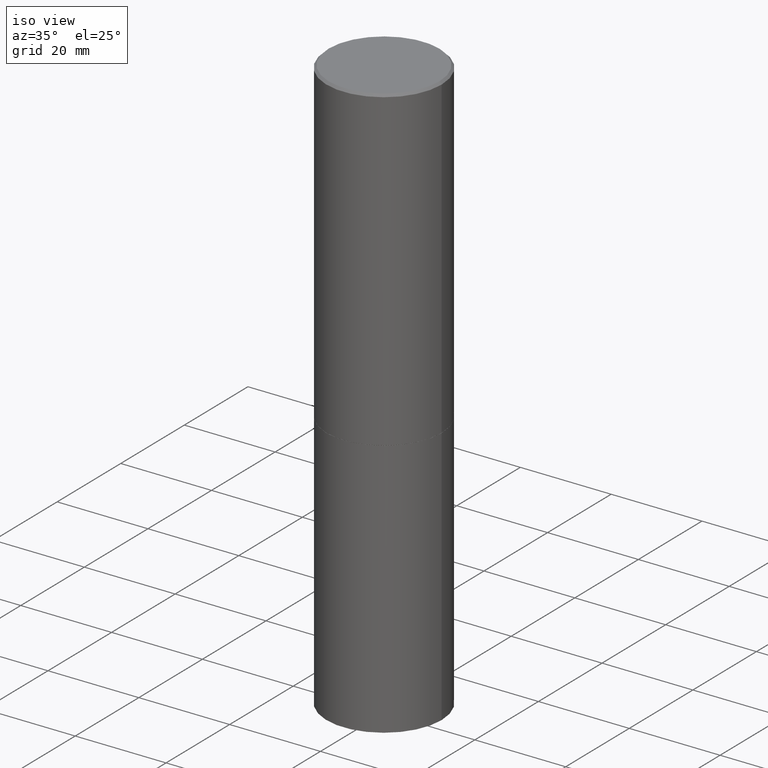
[diagram: clean part render]
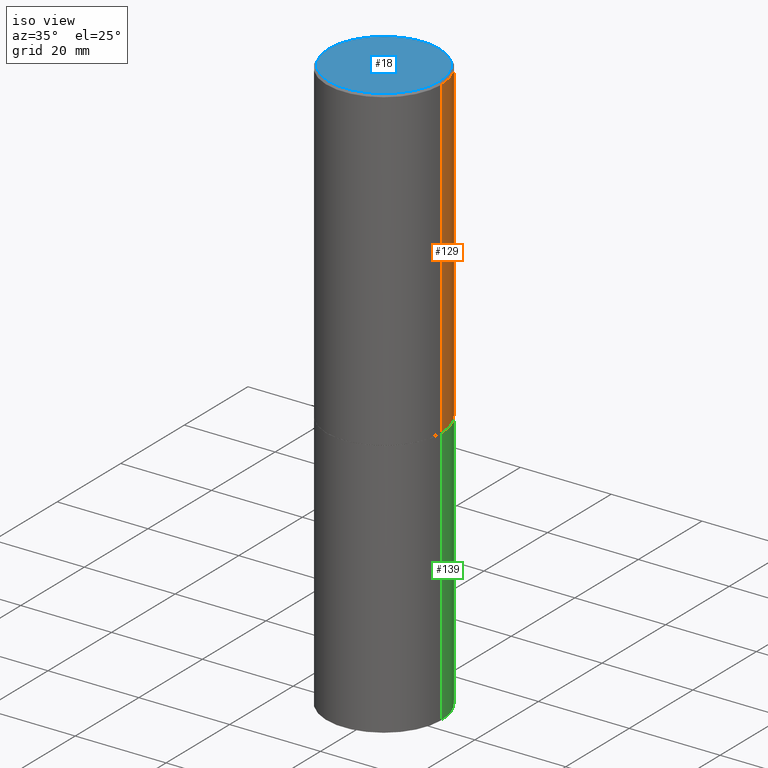
[diagram: same view with three faces highlighted in distinct colors, each labeled with its STEP entity id]
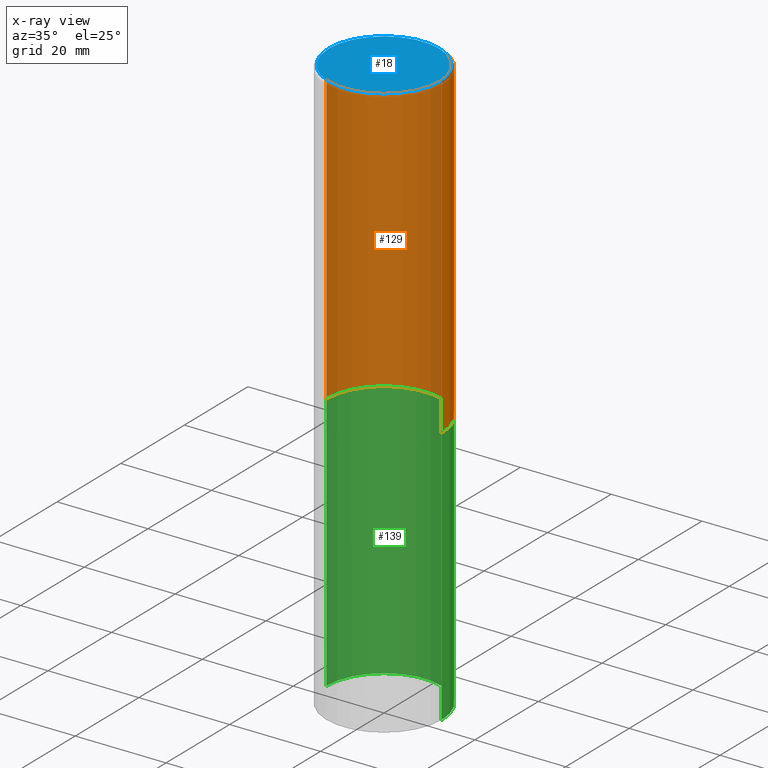
[diagram: x-ray of the same camera — body ghosted, the three highlighted faces saturated]
A machine part, iso view with three faces highlighted in distinct colors.
The next image is the same camera in x-ray (body ghosted, the three faces saturated) — at least one of them is partly hidden behind the body in this view.
Their STEP definitions:

[orange] entity #129 — the highlighted cylindrical surface (partial cylindrical patch) has radius 12.7 mm, axis along (-0, 0, 1).
#12 = CARTESIAN_POINT ( 'NONE',  ( 4.890937612370299433E-31, -6.982962677686328587E-17, -0.02000000000000010797 ) ) ;
#13 = DIRECTION ( 'NONE',  ( -2.445468806185136877E-29, 3.491481338843145188E-15, 1.000000000000000000 ) ) ;
#17 = CARTESIAN_POINT ( 'NONE',  ( -0.4999999999999996114, 3.421651712066267296E-15, -0.02000000000000010797 ) ) ;
#22 = CARTESIAN_POINT ( 'NONE',  ( 0.4999999999999996114, -3.500078625662626318E-15, -0.02000000000000010797 ) ) ;
#33 = ORIENTED_EDGE ( 'NONE', *, *, #219, .F. ) ;
#44 = FACE_OUTER_BOUND ( 'NONE', #118, .T. ) ;
#45 = CARTESIAN_POINT ( 'NONE',  ( 0.5000000000000001110, -1.308956353932294179E-14, -2.749000000000000110 ) ) ;
#61 = ORIENTED_EDGE ( 'NONE', *, *, #292, .T. ) ;
#63 = DIRECTION ( 'NONE',  ( -2.445468806185136597E-29, 3.491481338843145583E-15, 1.000000000000000000 ) ) ;
#68 = EDGE_CURVE ( 'NONE', #155, #288, #205, .T. ) ;
#75 = CARTESIAN_POINT ( 'NONE',  ( 6.722593748202941159E-29, -9.598082200479808430E-15, -2.749000000000000110 ) ) ;
#77 = DIRECTION ( 'NONE',  ( 1.000000000000000000, -6.982962677686265133E-15, 0.000000000000000000 ) ) ;
#94 = CARTESIAN_POINT ( 'NONE',  ( 0.000000000000000000, 0.000000000000000000, 0.000000000000000000 ) ) ;
#108 = DIRECTION ( 'NONE',  ( -2.445468806185136597E-29, 3.491481338843145583E-15, 1.000000000000000000 ) ) ;
#118 = EDGE_LOOP ( 'NONE', ( #61, #316, #33, #358 ) ) ;
#129 = ADVANCED_FACE ( 'NONE', ( #44 ), #238, .T. ) ;
#155 = VERTEX_POINT ( 'NONE', #272 ) ;
#160 = DIRECTION ( 'NONE',  ( -2.445468806185136597E-29, 3.491481338843145583E-15, 1.000000000000000000 ) ) ;
#167 = AXIS2_PLACEMENT_3D ( 'NONE', #75, #108, #77 ) ;
#175 = DIRECTION ( 'NONE',  ( -2.445468806185136877E-29, 3.491481338843145188E-15, 1.000000000000000000 ) ) ;
#184 = DIRECTION ( 'NONE',  ( 1.000000000000000000, -6.982962677686266711E-15, 0.000000000000000000 ) ) ;
#185 = CIRCLE ( 'NONE', #167, 0.5000000000000001110 ) ;
#188 = EDGE_CURVE ( 'NONE', #298, #234, #295, .T. ) ;
#195 = VECTOR ( 'NONE', #13, 39.37007874015748143 ) ;
#205 = LINE ( 'NONE', #285, #322 ) ;
#219 = EDGE_CURVE ( 'NONE', #234, #288, #303, .T. ) ;
#232 = AXIS2_PLACEMENT_3D ( 'NONE', #12, #63, #184 ) ;
#234 = VERTEX_POINT ( 'NONE', #22 ) ;
#238 = CYLINDRICAL_SURFACE ( 'NONE', #314, 0.4999999999999998335 ) ;
#272 = CARTESIAN_POINT ( 'NONE',  ( -0.5000000000000001110, -1.281242234827831779E-15, -2.749000000000000110 ) ) ;
#285 = CARTESIAN_POINT ( 'NONE',  ( -0.4999999999999998335, 3.552713678800499746E-15, -2.459467545127452330E-29 ) ) ;
#288 = VERTEX_POINT ( 'NONE', #17 ) ;
#292 = EDGE_CURVE ( 'NONE', #298, #155, #185, .T. ) ;
#294 = DIRECTION ( 'NONE',  ( 1.000000000000000000, -6.982962677686267499E-15, 4.876176775795936353E-29 ) ) ;
#295 = LINE ( 'NONE', #318, #195 ) ;
#298 = VERTEX_POINT ( 'NONE', #45 ) ;
#303 = CIRCLE ( 'NONE', #232, 0.4999999999999996114 ) ;
#314 = AXIS2_PLACEMENT_3D ( 'NONE', #94, #160, #294 ) ;
#316 = ORIENTED_EDGE ( 'NONE', *, *, #68, .T. ) ;
#318 = CARTESIAN_POINT ( 'NONE',  ( 0.4999999999999998335, -3.491481338843132566E-15, 2.438088387897967336E-29 ) ) ;
#322 = VECTOR ( 'NONE', #175, 39.37007874015748143 ) ;
#358 = ORIENTED_EDGE ( 'NONE', *, *, #188, .F. ) ;

[blue] entity #18 — the highlighted planar face has unit normal (0, -0, -1).
#9 = FACE_OUTER_BOUND ( 'NONE', #306, .T. ) ;
#18 = ADVANCED_FACE ( 'NONE', ( #9 ), #338, .F. ) ;
#29 = DIRECTION ( 'NONE',  ( -1.000000000000000000, 6.982962677686265922E-15, -4.876176775795935793E-29 ) ) ;
#38 = DIRECTION ( 'NONE',  ( 1.000000000000000000, -6.982962677686266711E-15, 4.876036955247133888E-29 ) ) ;
#101 = AXIS2_PLACEMENT_3D ( 'NONE', #183, #289, #38 ) ;
#104 = AXIS2_PLACEMENT_3D ( 'NONE', #212, #159, #157 ) ;
#117 = AXIS2_PLACEMENT_3D ( 'NONE', #345, #282, #29 ) ;
#122 = ORIENTED_EDGE ( 'NONE', *, *, #202, .T. ) ;
#124 = VERTEX_POINT ( 'NONE', #163 ) ;
#125 = ORIENTED_EDGE ( 'NONE', *, *, #192, .T. ) ;
#157 = DIRECTION ( 'NONE',  ( 1.000000000000000000, -6.982962677686266711E-15, 4.876036955247133888E-29 ) ) ;
#159 = DIRECTION ( 'NONE',  ( -2.445468806185136597E-29, 3.491481338843145583E-15, 1.000000000000000000 ) ) ;
#163 = CARTESIAN_POINT ( 'NONE',  ( 0.4799999999999995381, -3.396558832296479338E-15, 1.280553747032483033E-17 ) ) ;
#183 = CARTESIAN_POINT ( 'NONE',  ( -3.131554243005659264E-46, 4.471029511141341874E-32, 1.280553747030123384E-17 ) ) ;
#192 = EDGE_CURVE ( 'NONE', #124, #223, #208, .T. ) ;
#202 = EDGE_CURVE ( 'NONE', #223, #124, #323, .T. ) ;
#208 = CIRCLE ( 'NONE', #101, 0.4799999999999995381 ) ;
#212 = CARTESIAN_POINT ( 'NONE',  ( -3.131554243005659264E-46, 4.471029511141341874E-32, 1.280553747030123384E-17 ) ) ;
#223 = VERTEX_POINT ( 'NONE', #291 ) ;
#282 = DIRECTION ( 'NONE',  ( 2.438088387897960049E-29, -3.491481338843145188E-15, -1.000000000000000000 ) ) ;
#289 = DIRECTION ( 'NONE',  ( -2.445468806185136597E-29, 3.491481338843145583E-15, 1.000000000000000000 ) ) ;
#291 = CARTESIAN_POINT ( 'NONE',  ( -0.4799999999999995381, 3.386736898677836041E-15, 1.280553747027767124E-17 ) ) ;
#306 = EDGE_LOOP ( 'NONE', ( #122, #125 ) ) ;
#323 = CIRCLE ( 'NONE', #104, 0.4799999999999995381 ) ;
#338 = PLANE ( 'NONE',  #117 ) ;
#345 = CARTESIAN_POINT ( 'NONE',  ( 3.351822085289404392E-15, 0.4799999999999995381, -1.669508273909557670E-15 ) ) ;

[green] entity #139 — the highlighted cylindrical surface (partial cylindrical patch) has radius 12.7 mm, axis along (-0, 0, 1).
#6 = VERTEX_POINT ( 'NONE', #264 ) ;
#11 = LINE ( 'NONE', #102, #341 ) ;
#15 = FACE_OUTER_BOUND ( 'NONE', #36, .T. ) ;
#16 = CARTESIAN_POINT ( 'NONE',  ( 0.5000000000000000000, -2.094888803305886324E-14, -5.000000000000000000 ) ) ;
#27 = CIRCLE ( 'NONE', #352, 0.5000000000000000000 ) ;
#31 = EDGE_CURVE ( 'NONE', #6, #181, #71, .T. ) ;
#32 = CARTESIAN_POINT ( 'NONE',  ( 6.725039217009124520E-29, -9.601573681818649859E-15, -2.750000000000000000 ) ) ;
#36 = EDGE_LOOP ( 'NONE', ( #366, #236, #87, #201 ) ) ;
#40 = CYLINDRICAL_SURFACE ( 'NONE', #301, 0.5000000000000000000 ) ;
#42 = LINE ( 'NONE', #127, #136 ) ;
#62 = CARTESIAN_POINT ( 'NONE',  ( -0.5000000000000000000, -9.976776509216688154E-15, -5.000000000000000000 ) ) ;
#71 = CIRCLE ( 'NONE', #254, 0.5000000000000000000 ) ;
#87 = ORIENTED_EDGE ( 'NONE', *, *, #31, .F. ) ;
#102 = CARTESIAN_POINT ( 'NONE',  ( -0.5000000000000000000, 3.552713678800500929E-15, -2.459467545127452891E-29 ) ) ;
#127 = CARTESIAN_POINT ( 'NONE',  ( 0.5000000000000000000, -3.491481338843133355E-15, 2.438088387897967896E-29 ) ) ;
#136 = VECTOR ( 'NONE', #321, 39.37007874015748143 ) ;
#139 = ADVANCED_FACE ( 'NONE', ( #15 ), #40, .T. ) ;
#156 = VERTEX_POINT ( 'NONE', #62 ) ;
#179 = DIRECTION ( 'NONE',  ( 1.000000000000000000, -6.982962677686266711E-15, 0.000000000000000000 ) ) ;
#181 = VERTEX_POINT ( 'NONE', #353 ) ;
#182 = EDGE_CURVE ( 'NONE', #156, #181, #11, .T. ) ;
#189 = DIRECTION ( 'NONE',  ( -2.445468806185136877E-29, 3.491481338843145188E-15, 1.000000000000000000 ) ) ;
#201 = ORIENTED_EDGE ( 'NONE', *, *, #204, .F. ) ;
#204 = EDGE_CURVE ( 'NONE', #209, #6, #42, .T. ) ;
#209 = VERTEX_POINT ( 'NONE', #16 ) ;
#236 = ORIENTED_EDGE ( 'NONE', *, *, #182, .T. ) ;
#239 = CARTESIAN_POINT ( 'NONE',  ( 0.000000000000000000, 0.000000000000000000, 0.000000000000000000 ) ) ;
#245 = DIRECTION ( 'NONE',  ( -2.445468806185136597E-29, 3.491481338843145583E-15, 1.000000000000000000 ) ) ;
#254 = AXIS2_PLACEMENT_3D ( 'NONE', #32, #261, #179 ) ;
#261 = DIRECTION ( 'NONE',  ( -2.445468806185136597E-29, 3.491481338843145583E-15, 1.000000000000000000 ) ) ;
#264 = CARTESIAN_POINT ( 'NONE',  ( 0.5000000000000000000, -1.309305502066178321E-14, -2.750000000000000000 ) ) ;
#297 = DIRECTION ( 'NONE',  ( 1.000000000000000000, -6.982962677686266711E-15, 0.000000000000000000 ) ) ;
#301 = AXIS2_PLACEMENT_3D ( 'NONE', #239, #245, #354 ) ;
#305 = DIRECTION ( 'NONE',  ( -2.445468806185136597E-29, 3.491481338843145583E-15, 1.000000000000000000 ) ) ;
#320 = EDGE_CURVE ( 'NONE', #209, #156, #27, .T. ) ;
#321 = DIRECTION ( 'NONE',  ( -2.445468806185136877E-29, 3.491481338843145188E-15, 1.000000000000000000 ) ) ;
#335 = CARTESIAN_POINT ( 'NONE',  ( 1.222734403092568523E-28, -1.745740669421572989E-14, -5.000000000000000000 ) ) ;
#341 = VECTOR ( 'NONE', #189, 39.37007874015748143 ) ;
#352 = AXIS2_PLACEMENT_3D ( 'NONE', #335, #305, #297 ) ;
#353 = CARTESIAN_POINT ( 'NONE',  ( -0.5000000000000000000, -9.976776509216688154E-15, -2.750000000000000000 ) ) ;
#354 = DIRECTION ( 'NONE',  ( 1.000000000000000000, -6.982962677686266711E-15, 4.876176775795935793E-29 ) ) ;
#366 = ORIENTED_EDGE ( 'NONE', *, *, #320, .T. ) ;